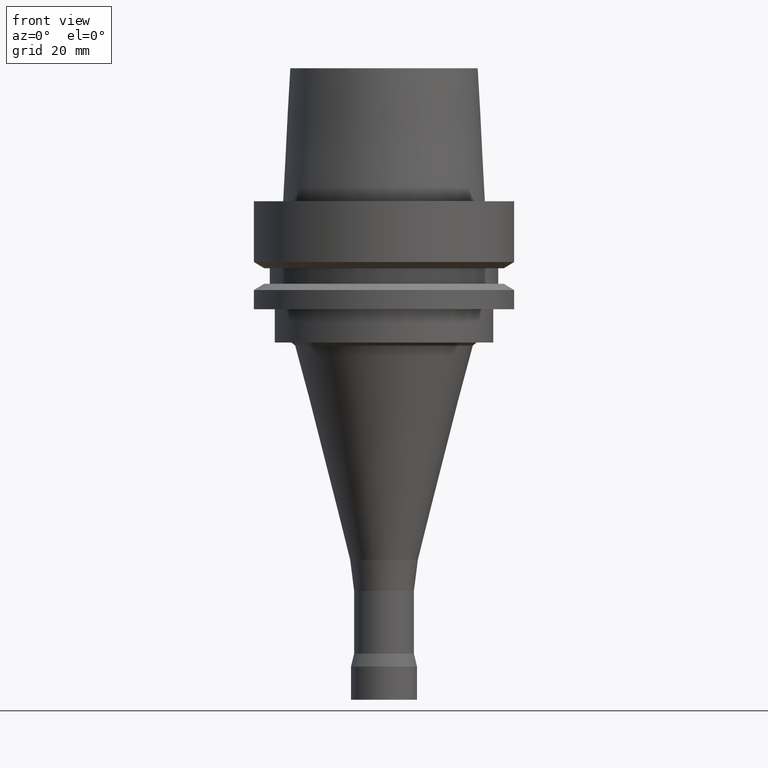
[diagram: clean part render]
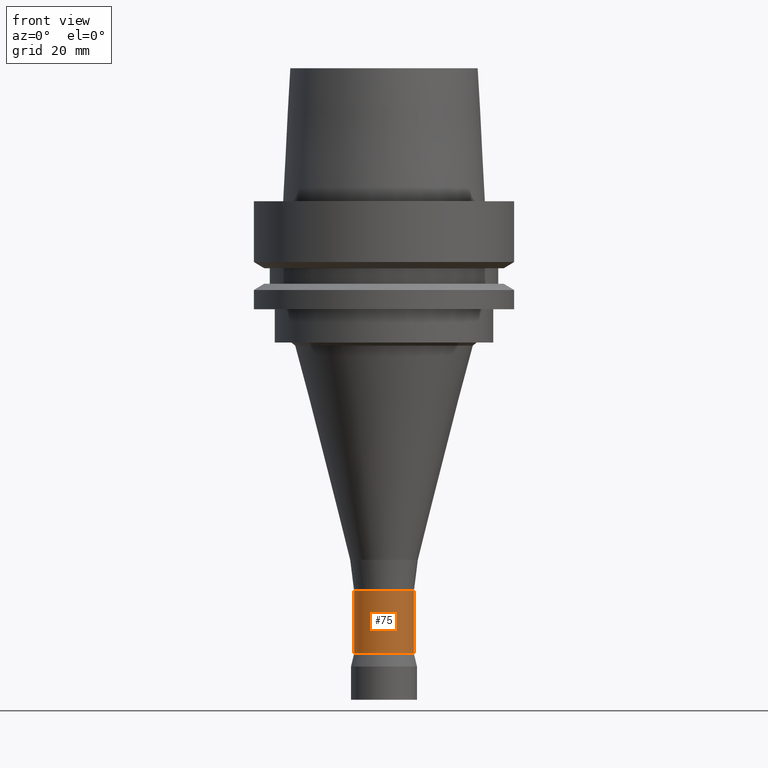
[diagram: same view with one face highlighted and labeled with its STEP entity id]
A machine part, front view. The second image highlights one B-rep face of the part: STEP entity #75.
In plain terms, the highlighted cylindrical surface (bore or boss wall) has radius 7.25 mm, axis along (-0, -0, 1).
Its self-contained STEP definition (entity closure, byte-faithful):
#75=ADVANCED_FACE('',(#96,#97),#98,.T.);
#96=FACE_BOUND('',#154,.T.);
#97=FACE_BOUND('',#155,.T.);
#98=CYLINDRICAL_SURFACE('',#156,7.25);
#154=EDGE_LOOP('',(#212));
#155=EDGE_LOOP('',(#213));
#156=AXIS2_PLACEMENT_3D('',#214,#215,#216);
#212=ORIENTED_EDGE('',*,*,#310,.F.);
#213=ORIENTED_EDGE('',*,*,#311,.T.);
#214=CARTESIAN_POINT('',(6.20595260335644E-015,1.24119052067129E-014,-101.35089738));
#215=DIRECTION('',(-6.12323399573677E-017,-1.22464679914735E-016,1.0));
#216=DIRECTION('',(-1.23259516440783E-032,1.0,1.22464679914735E-016));
#310=EDGE_CURVE('',#329,#329,#330,.T.);
#311=EDGE_CURVE('',#331,#331,#332,.T.);
#329=VERTEX_POINT('',#367);
#330=CIRCLE('',#368,7.25);
#331=VERTEX_POINT('',#369);
#332=CIRCLE('',#370,7.25);
#367=CARTESIAN_POINT('',(6.66741122734786E-015,7.25000000000001,-108.88708862));
#368=AXIS2_PLACEMENT_3D('',#405,#406,#407);
#369=CARTESIAN_POINT('',(5.74449397936503E-015,7.25000000000001,-93.81470614));
#370=AXIS2_PLACEMENT_3D('',#408,#409,#410);
#405=CARTESIAN_POINT('',(6.66741122734786E-015,1.33348224546957E-014,-108.88708862));
#406=DIRECTION('',(6.12323399573677E-017,1.22464679914735E-016,-1.0));
#407=DIRECTION('',(-1.23259516440783E-032,1.0,1.22464679914735E-016));
#408=CARTESIAN_POINT('',(5.74449397936503E-015,1.14889879587301E-014,-93.81470614));
#409=DIRECTION('',(6.12323399573677E-017,1.22464679914735E-016,-1.0));
#410=DIRECTION('',(-1.23259516440783E-032,1.0,1.22464679914735E-016));